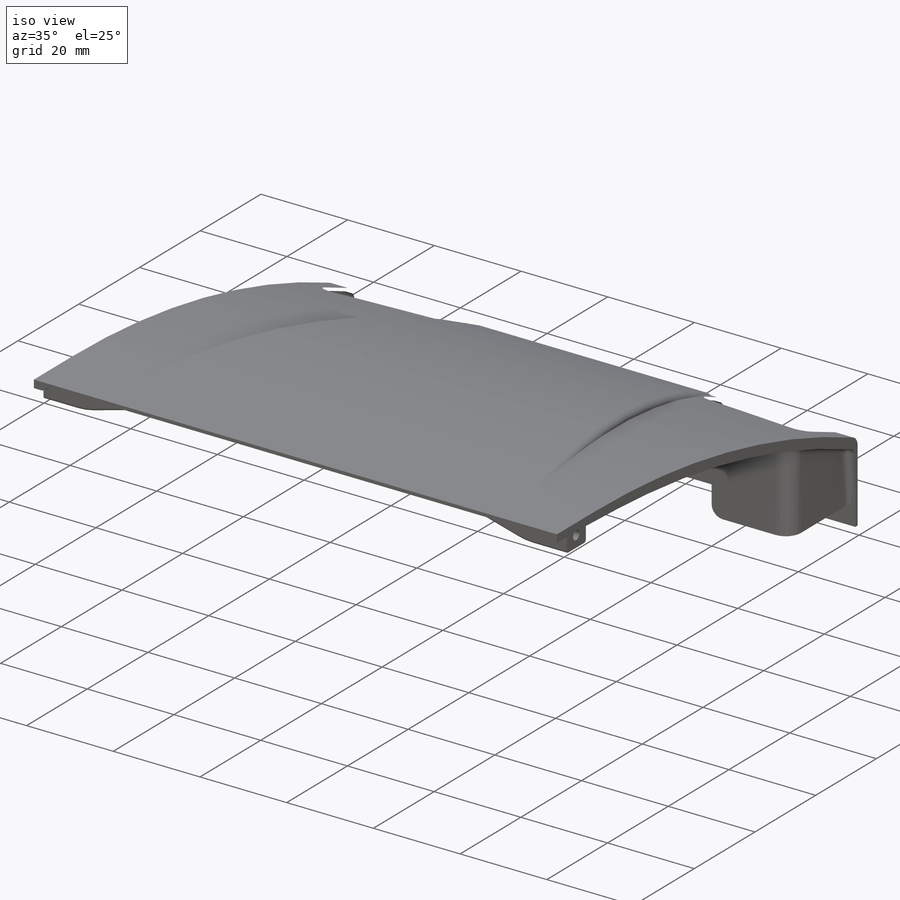
[diagram: iso view]
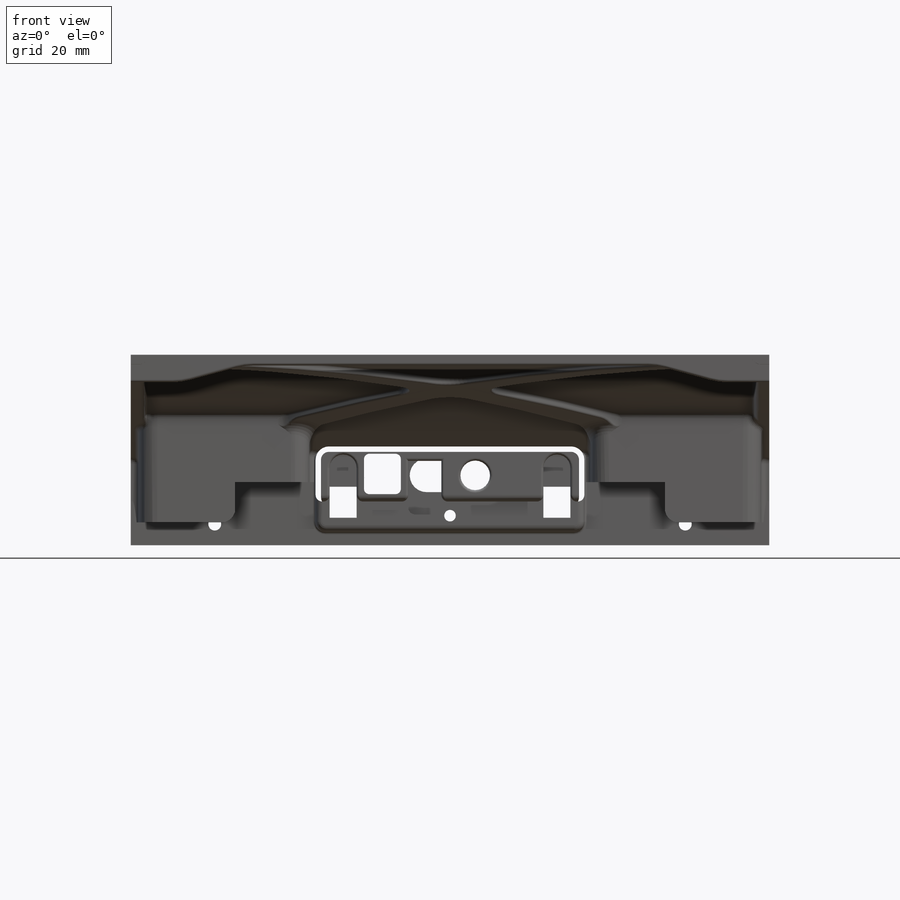
[diagram: front view]
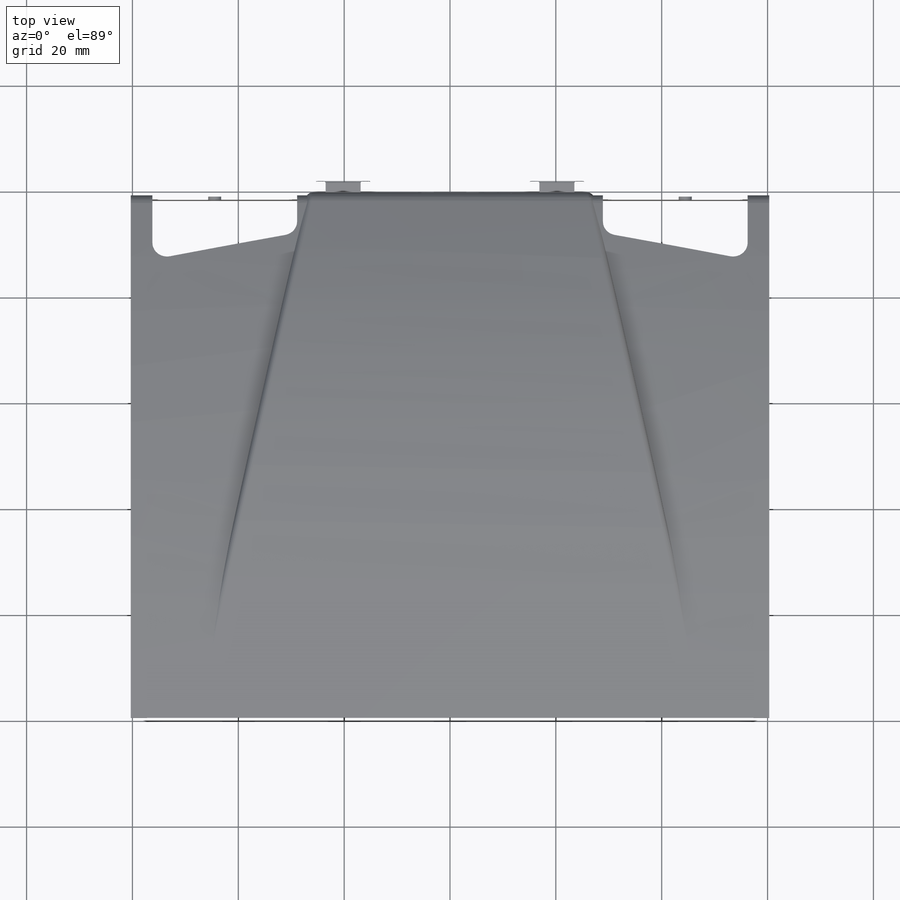
[diagram: top view]
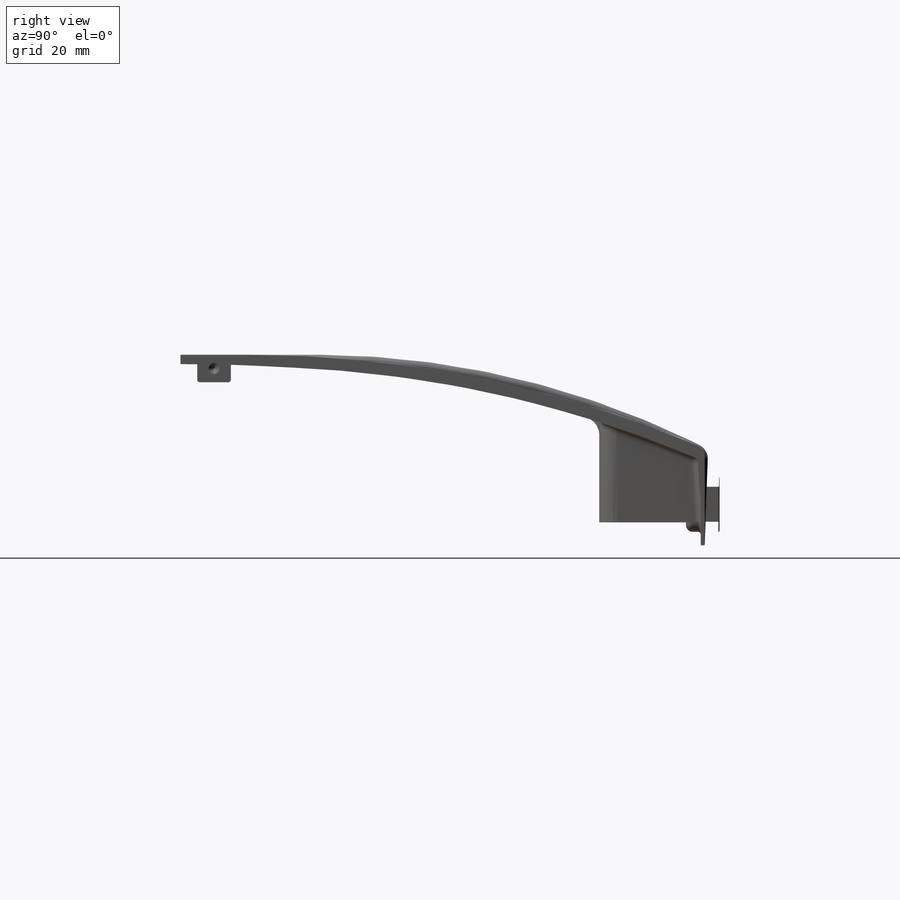
[diagram: right view]
SOLIDWORKS PART (.sldprt)
format: sldprt  version: not decoded by parser v0  size: 3,729,408 bytes
history: native  units: mm
features: sketch x36, fillet x24, cut_extrude x15, extrude x9, hole x5, mirror x4, sheet_metal_op x3, boolean_combine x2, move_body x2, chamfer x2, material x1, plane x1 + 1 further entry (+16 scaffold rows collapsed; 3 parser-record rows omitted)
feature tree (124):
  scaffold x16  (default folders/planes/origin — collapsed)
  material  "Polyester Resin"
  sketch  "Sketch1"  dims[c1.D1=~7.908657mm c2.D1=19.05mm c2.D2=36.7538mm c2.D3=99.06mm c2.D4=12.7mm]
  sheet_metal_op  "Sheet-Metal1"  Thickness=0.762mm
  sheet_metal_op  "Base-Flange1"
  sheet_metal_op  "BaseBend2"
  sketch  "Sketch2"  dims[c1.D1=25.4mm c1.D2=9.652mm c1.D3=22.225mm c1.D4=5.08mm c1.D5=15.24mm c1.D6=6.35mm c1.D7=13.97mm c2.D6=7.62mm c2.D8=10.16mm c2.D9=6.35mm c2.D10=1.778mm c2.D2=22.733mm c2.D3=~25.36823mm c3.D6=~25.36823mm c4.D6=4.0deg]
  cut_extrude  "Extrude1"  [1 undecoded]
  fillet  "Fillet1"  Radius=1.778mm
  hole  "#2-56 Tapped Hole1"  Diameter=2.1844mm Depth=36.7538mm
  sketch  "3DSketch1"  dims[D1=44.45mm D2=44.45mm D3=6.35mm]
  sketch  "Sketch8"  dims[hole-wizard template sketch: 59 standard entries collapsed; hole parameters kept: c18.Thread Major Dia.=2.1844mm c18.Thru Tap Drill Depth=36.7538mm]
  hole  "#2 Clearance Hole2"  Diameter=2.4384mm Depth=1.27mm
  sketch  "3DSketch2"  dims[D1=44.45mm D2=44.45mm D3=4.7625mm]
  sketch  "Sketch9"  dims[hole-wizard template sketch: 47 standard entries collapsed; hole parameters kept: c15.Hole Depth=1.27mm c15.D3=~14.816244mm c15.Drill Angle=118.0deg]
  sketch  "Sketch10"  dims[c1.D1=5.08mm c1.D2=6.477mm c2.D1=5.08mm c2.D4=2.54mm c3.D1=~1.889212mm c3.D2=10.668mm c3.D3=10.668mm c4.D2=0.1778mm]
  cut_extrude  "Cut-Extrude1"  [1 undecoded]
  sketch  "Sketch11"  dims[D1=0.762mm]
  cut_extrude  "Cut-Extrude2"  [1 undecoded]
  hole  "#2 Clearance Hole3"  Diameter=2.4384mm Depth=10.922mm
  sketch  "Sketch13"  dims[c1.D1=3.81mm c1.D2=7.62mm c1.D3=9.144mm c1.D4=9.525mm c1.D5=9.144mm c2.D3=12.192mm c2.D4=15.24mm c3.D3=~5.161421mm c3.D1=6.35mm]
  sketch  "Sketch12"  dims[hole-wizard template sketch: 47 standard entries collapsed; hole parameters kept: c15.Hole Depth=10.922mm c15.D3=~14.816244mm c15.Drill Angle=118.0deg]
  sketch  "Sketch14"  dims[c1.D2=~41.185597mm c2.D2=~178.187111deg c3.D2=12.7mm c3.D3=1.016mm c3.D4=12.7mm c4.D2=~16.520705mm c5.D2=2.0deg c5.D1=0.0mm c6.D2=0.508mm c6.D1=0.0mm]
  extrude  "Boss-Extrude1"  Depth=120.65mm
  sketch  "Sketch15"  dims[D1=13.97mm D2=53.975mm]
  cut_extrude  "Cut-Extrude3"  [1 undecoded]
  sketch  "Sketch16"  dims[D1=0.0mm D2=0.0mm D3=0.0mm D4=0.0mm D5=0.0mm]
  cut_extrude  "Cut-Extrude4"  [1 undecoded]
  fillet  "Fillet2"  Radius=1.27mm
  sketch  "Sketch17"  dims[c1.D3=1.524mm c1.D2=0.508mm c1.D6=1.016mm c1.D1=1.524mm c2.D2=1.524mm c2.D4=0.0mm c2.D5=0.0mm]
  extrude  "Boss-Extrude2"  Depth=2.54mm
  mirror  "Mirror3"
  fillet  "Fillet3"  Radius=1.27mm
  fillet  "Fillet4"  Radius=1.27mm
  plane  "Plane1"  Offset=4.318mm
  sketch  "Sketch18"  dims[D4=1.651mm D1=17.399mm D2=3.3528mm D3=28.575mm D5=1.778mm]
  extrude  "Boss-Extrude3"  [1 undecoded]
  mirror  "Mirror4"
  fillet  "Fillet5"  Radius=1.27mm
  sketch  "Sketch19"  dims[D1=7.62mm D2=13.97mm]
  cut_extrude  "Cut-Extrude6"  [1 undecoded]
  fillet  "Fillet6"  Radius=2.54mm
  sketch  "Sketch20"  dims[c1.D1=0.0mm c1.D2=0.0mm c1.D3=0.0mm c1.D4=0.0mm c1.D5=0.0mm c2.D2=0.0mm c2.D3=0.0mm c2.D1=0.0mm c3.D2=0.0mm c3.D3=0.0mm]
  extrude  "Boss-Extrude4"  Depth=120.65mm
  sketch  "Sketch21"  dims[D3=5.08mm D4=7.62mm D5=3.175mm D1=3.175mm D2=3.175mm D6=0.0mm D7=0.0mm]
  cut_extrude  "Cut-Extrude7"  [1 undecoded]
  boolean_combine  "Combine1"
  sketch  "Sketch22"  dims[D1=6.35mm D2=3.175mm]
  extrude  "Boss-Extrude5"  Depth=4.445mm
  hole  "#1 Clearance Hole1"  Diameter=2.0574mm Depth=10.922mm
  sketch  "Sketch25"  dims[c1.D1=6.35mm c1.D2=3.175mm c1.D3=1.016mm c1.D4=3.175mm c2.D3=1.016mm c2.D4=3.175mm]
  sketch  "Sketch24"  dims[hole-wizard template sketch: 46 standard entries collapsed; hole parameters kept: c15.Hole Dia.=2.0574mm c15.Hole Depth=10.922mm c15.D3=~14.816244mm c15.Drill Angle=118.0deg]
  sketch  "Sketch26"  dims[c1.D1=9.525mm c1.D2=~11.586989mm c2.D2=15.0deg c2.D3=1.27mm]
  cut_extrude  "Cut-Extrude8"  [1 undecoded]
  fillet  "Fillet8"  Radius=12.7mm
  mirror  "Mirror5"
  fillet  "Fillet11"  Radius=3.175mm
  fillet  "Fillet12"  Radius=0.508mm
  fillet  "Fillet13"  Radius=0.762mm
  fillet  "Fillet14"  Radius=12.7mm
  sketch  "Sketch1_CHASSIS, HOOD, SENSOR MOUNT"  dims[D1=50.8mm D2=16.129mm]
  extrude  "Boss-Extrude1_CHASSIS, HOOD, SENSOR MOUNT"  Depth=5.334mm
  sketch  "Sketch2_CHASSIS, HOOD, SENSOR MOUNT"  dims[D2=5.588mm D1=2.7432mm D3=6.2484mm D4=10.16mm D5=9.525mm D6=4.7625mm D7=10.668mm D8=6.604mm D9=1.905mm D10=1.905mm]
  cut_extrude  "Cut-Extrude1_CHASSIS, HOOD, SENSOR MOUNT"  [1 undecoded]
  sketch  "Sketch3"  dims[D1=1.905mm D2=1.905mm]
  extrude  "Boss-Extrude2_CHASSIS, HOOD, SENSOR MOUNT"  Depth=3.556mm
  sketch  "Sketch5_CHASSIS, HOOD, SENSOR MOUNT"  dims[D1=5.08mm D2=1.27mm]
  extrude  "Boss-Extrude3_CHASSIS, HOOD, SENSOR MOUNT"  Depth=2.54mm
  sketch  "Sketch4"  dims[D1=5.08mm D2=12.7mm]
  cut_extrude  "Cut-Extrude2_CHASSIS, HOOD, SENSOR MOUNT"  [1 undecoded]
  fillet  "Fillet1_CHASSIS, HOOD, SENSOR MOUNT"  [1 undecoded]
  fillet  "Fillet4_CHASSIS, HOOD, SENSOR MOUNT"  [1 undecoded]
  fillet  "Fillet3_CHASSIS, HOOD, SENSOR MOUNT"  [1 undecoded]
  fillet  "Fillet10"  [1 undecoded]
  cut_extrude  "Cut-Extrude4_CHASSIS, HOOD, SENSOR MOUNT"  [1 undecoded]
  sketch  "Sketch12"  dims[D1=5.715mm D2=5.715mm]
  hole  "#2-56 Tapped Hole1_CHASSIS, HOOD, SENSOR MOUNT"  [1 undecoded]
  sketch  "Sketch112"
  cut_extrude  "Cut-Extrude3_CHASSIS, HOOD, SENSOR MOUNT"  [1 undecoded]
  sketch  "Sketch7"  dims[D1=0.0mm]
  fillet  "Fillet2_CHASSIS, HOOD, SENSOR MOUNT"  Radius=0.508mm
  sketch  "Sketch113"  dims[hole-wizard template sketch: 59 standard entries collapsed; hole parameters kept: c18.Thread Major Dia.=2.1844mm c18.Thru Tap Drill Depth=~5.334025mm]
  fillet  "Fillet9"  Radius=1.27mm
  fillet  "Fillet11_CHASSIS, HOOD, SENSOR MOUNT"  Radius=1.27mm
  fillet  "Fillet12_CHASSIS, HOOD, SENSOR MOUNT"  Radius=0.254mm
  move_body  "Body-Move/Copy7"
  move_body  "Body-Move/Copy6"
  parser-record x3  (decoder bookkeeping rows leaked as tree rows — omitted from the tree; the rows remain in map.json)
  boolean_combine  "Combine9"
  fillet  "Fillet18"  Radius=0.508mm
  fillet  "Fillet19"  Radius=0.508mm
  fillet  "Fillet20"  Radius=1.016mm
  fillet  "Fillet21"  Radius=1.016mm
  sketch  "Sketch115"  dims[D1=1.905mm D2=1.905mm D3=1.905mm D4=~1.887765mm]
  cut_extrude  "Cut-Extrude13"  Depth=2.54mm
  fillet  "Fillet22"  Radius=0.508mm
  chamfer  "Chamfer1"  Distance=0.508mm
  sketch  "Sketch116"  dims[D1=0.508mm]
  extrude  "Boss-Extrude6"  Depth=1.27mm
  mirror  "Mirror6"
  sketch  "Sketch117"  dims[D1=1.2502mm]
  cut_extrude  "Cut-Extrude15"  Depth=0.13mm
  "Flat-Pattern1"
  sketch  "Bend-Lines1"
  chamfer  "Flatten-<BaseBend2>1"  [1 undecoded]
  sketch  "Sketch5"  dims[D1=1.27mm D2=1.27mm]
  cut_extrude  "Extrude4"  [1 undecoded]
decode coverage: 70 of 102 modeling features carry decoded parameters; 1 rows unclassified (native names shown)
note: ~ marks probable driven/reference dimensions
note: 20 parameter values undecoded
summary: no parameter record found for 20 features; Diameter pulled from absorbed wizard sketch
note: suppression state not decoded; provenance and decode notes live in map.json
